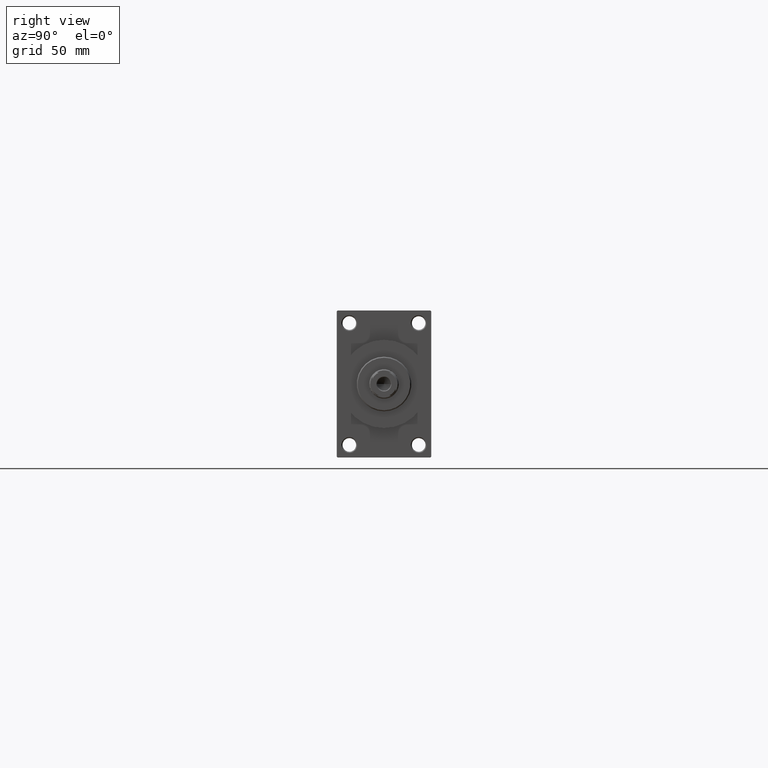
[diagram: clean part render]
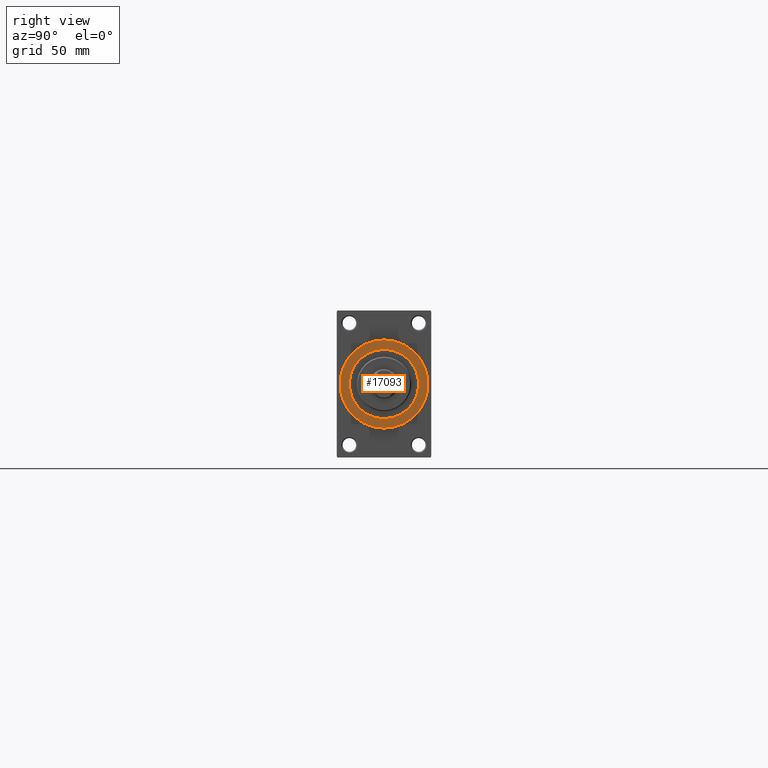
[diagram: same view with one face highlighted and labeled with its STEP entity id]
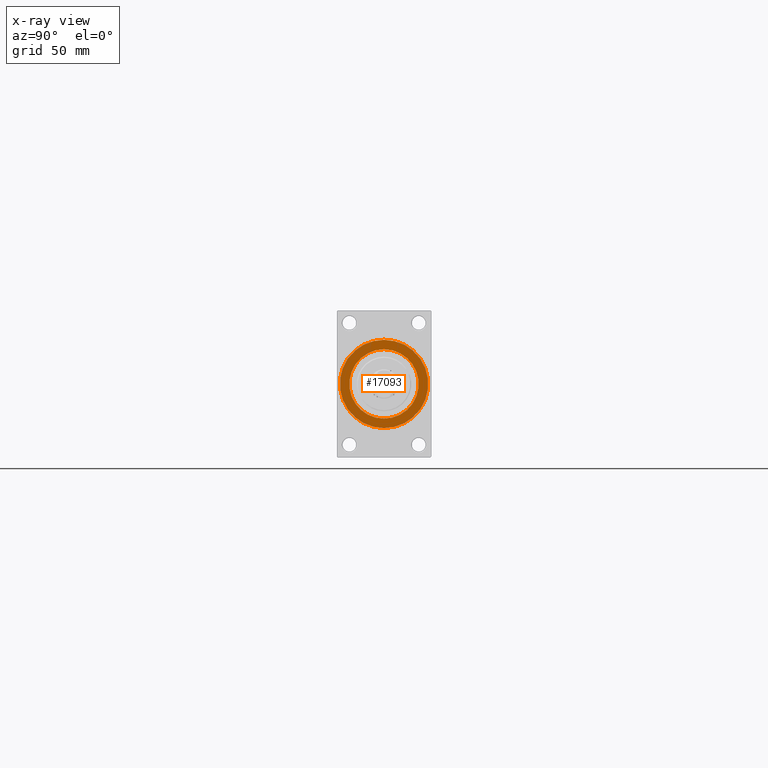
[diagram: x-ray of the same camera — body ghosted, the highlighted face saturated]
A machine part, right view. The second image highlights one B-rep face of the part: STEP entity #17093.
The next image is the same camera in x-ray: the body ghosted, the highlighted face saturated — about 0% of this face is hidden behind the body in this view.
In plain terms, the highlighted planar face has unit normal (1, 0, 0).
Its self-contained STEP definition (entity closure, byte-faithful):
#585 = DIRECTION ( 'NONE',  ( 1.000000000000000000, 0.000000000000000000, 0.000000000000000000 ) ) ;
#2046 = CARTESIAN_POINT ( 'NONE',  ( 303.0000000000000000, 0.000000000000000000, 0.000000000000000000 ) ) ;
#3043 = EDGE_LOOP ( 'NONE', ( #29492, #30748 ) ) ;
#5174 = VERTEX_POINT ( 'NONE', #43064 ) ;
#5297 = CIRCLE ( 'NONE', #21296, 21.00000000000000000 ) ;
#9082 = EDGE_CURVE ( 'NONE', #10093, #11203, #30083, .T. ) ;
#9434 = EDGE_CURVE ( 'NONE', #16096, #5174, #14841, .T. ) ;
#9532 = DIRECTION ( 'NONE',  ( 0.000000000000000000, 0.000000000000000000, -1.000000000000000000 ) ) ;
#9761 = DIRECTION ( 'NONE',  ( 1.000000000000000000, 0.000000000000000000, 0.000000000000000000 ) ) ;
#10093 = VERTEX_POINT ( 'NONE', #17780 ) ;
#11080 = DIRECTION ( 'NONE',  ( 0.000000000000000000, 0.000000000000000000, -1.000000000000000000 ) ) ;
#11203 = VERTEX_POINT ( 'NONE', #31524 ) ;
#11847 = EDGE_LOOP ( 'NONE', ( #26934, #30348 ) ) ;
#12026 = CIRCLE ( 'NONE', #25768, 16.50000000000000000 ) ;
#12058 = DIRECTION ( 'NONE',  ( 1.000000000000000000, 0.000000000000000000, 0.000000000000000000 ) ) ;
#13013 = DIRECTION ( 'NONE',  ( 1.000000000000000000, 0.000000000000000000, 0.000000000000000000 ) ) ;
#13113 = FACE_BOUND ( 'NONE', #3043, .T. ) ;
#13579 = FACE_OUTER_BOUND ( 'NONE', #11847, .T. ) ;
#14841 = CIRCLE ( 'NONE', #31633, 21.00000000000000000 ) ;
#16096 = VERTEX_POINT ( 'NONE', #27789 ) ;
#17093 = ADVANCED_FACE ( 'NONE', ( #13113, #13579 ), #46235, .T. ) ;
#17780 = CARTESIAN_POINT ( 'NONE',  ( 303.0000000000000000, 2.020667218593133100E-15, 16.50000000000000000 ) ) ;
#20625 = EDGE_CURVE ( 'NONE', #11203, #10093, #12026, .T. ) ;
#21296 = AXIS2_PLACEMENT_3D ( 'NONE', #2046, #13013, #41616 ) ;
#24421 = CARTESIAN_POINT ( 'NONE',  ( 303.0000000000000000, 0.000000000000000000, 0.000000000000000000 ) ) ;
#24654 = DIRECTION ( 'NONE',  ( 1.000000000000000000, 0.000000000000000000, 0.000000000000000000 ) ) ;
#25768 = AXIS2_PLACEMENT_3D ( 'NONE', #33258, #585, #11080 ) ;
#26615 = DIRECTION ( 'NONE',  ( 0.000000000000000000, 0.000000000000000000, -1.000000000000000000 ) ) ;
#26934 = ORIENTED_EDGE ( 'NONE', *, *, #35366, .T. ) ;
#27789 = CARTESIAN_POINT ( 'NONE',  ( 303.0000000000000000, 2.571758278209441661E-15, -21.00000000000000000 ) ) ;
#29430 = AXIS2_PLACEMENT_3D ( 'NONE', #41962, #9761, #9532 ) ;
#29492 = ORIENTED_EDGE ( 'NONE', *, *, #20625, .F. ) ;
#30083 = CIRCLE ( 'NONE', #30839, 16.50000000000000000 ) ;
#30348 = ORIENTED_EDGE ( 'NONE', *, *, #9434, .T. ) ;
#30748 = ORIENTED_EDGE ( 'NONE', *, *, #9082, .F. ) ;
#30839 = AXIS2_PLACEMENT_3D ( 'NONE', #33765, #12058, #26615 ) ;
#31524 = CARTESIAN_POINT ( 'NONE',  ( 303.0000000000000000, 0.000000000000000000, -16.50000000000000000 ) ) ;
#31633 = AXIS2_PLACEMENT_3D ( 'NONE', #24421, #24654, #42511 ) ;
#33258 = CARTESIAN_POINT ( 'NONE',  ( 303.0000000000000000, 0.000000000000000000, 0.000000000000000000 ) ) ;
#33765 = CARTESIAN_POINT ( 'NONE',  ( 303.0000000000000000, 0.000000000000000000, 0.000000000000000000 ) ) ;
#35366 = EDGE_CURVE ( 'NONE', #5174, #16096, #5297, .T. ) ;
#41616 = DIRECTION ( 'NONE',  ( 0.000000000000000000, 0.000000000000000000, -1.000000000000000000 ) ) ;
#41962 = CARTESIAN_POINT ( 'NONE',  ( 303.0000000000000000, 0.000000000000000000, 0.000000000000000000 ) ) ;
#42511 = DIRECTION ( 'NONE',  ( 0.000000000000000000, 0.000000000000000000, -1.000000000000000000 ) ) ;
#43064 = CARTESIAN_POINT ( 'NONE',  ( 303.0000000000000000, 0.000000000000000000, 21.00000000000000000 ) ) ;
#46235 = PLANE ( 'NONE',  #29430 ) ;